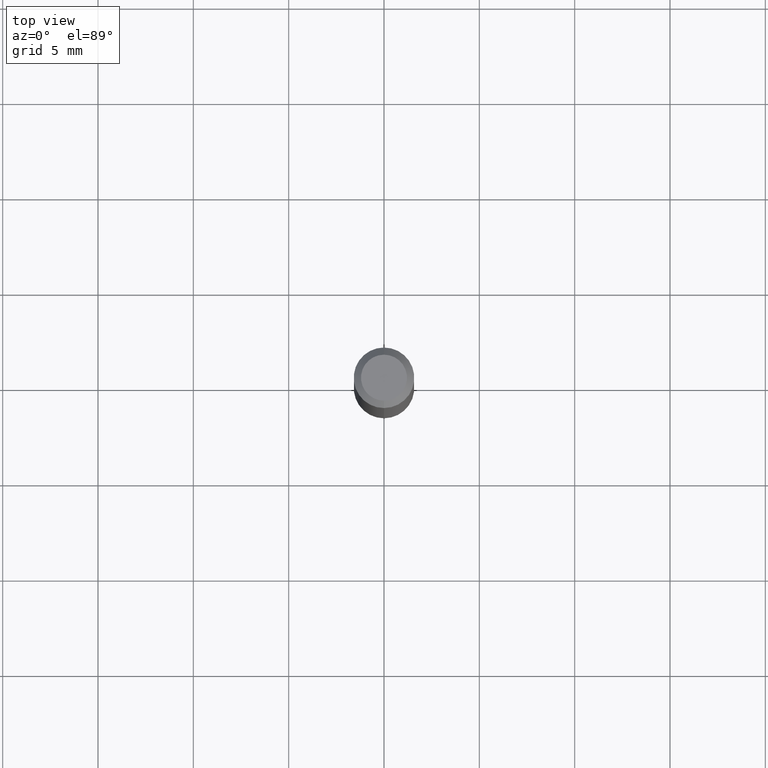
[diagram: clean part render]
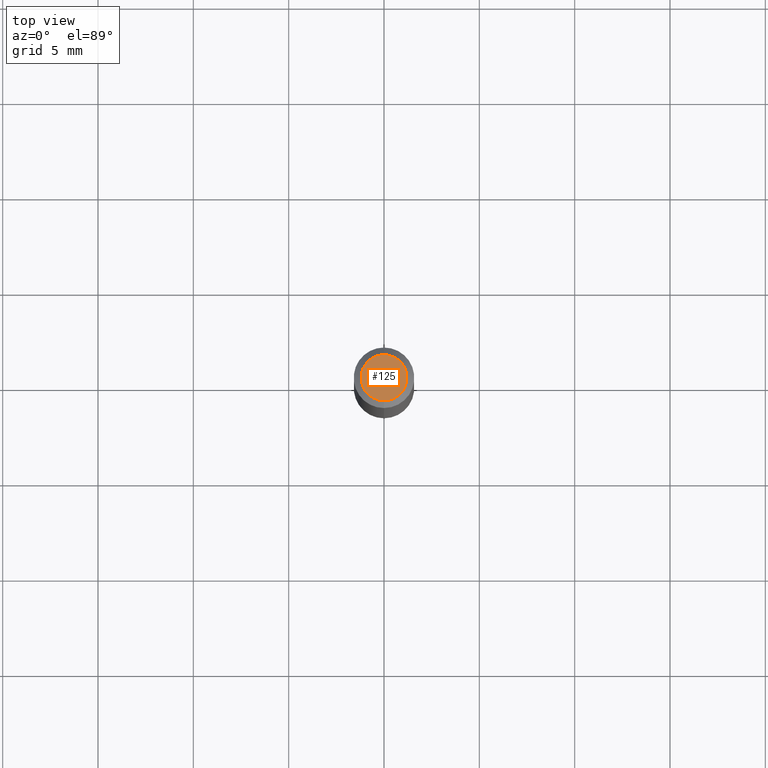
[diagram: same view with one face highlighted and labeled with its STEP entity id]
A machine part, top view. The second image highlights one B-rep face of the part: STEP entity #125.
In plain terms, the highlighted planar face has unit normal (0, -0, -1).
Its self-contained STEP definition (entity closure, byte-faithful):
#10 = DIRECTION ( 'NONE',  ( -6.982962677686266711E-15, -1.000000000000000000, 3.491472814868969217E-15 ) ) ;
#116 = CARTESIAN_POINT ( 'NONE',  ( 3.316907271900976096E-16, 0.04749999999999999362, -1.702753209465782678E-16 ) ) ;
#125 = ADVANCED_FACE ( 'NONE', ( #313 ), #239, .F. ) ;
#150 = CARTESIAN_POINT ( 'NONE',  ( 3.840629472727447874E-16, 0.04749999999999999362, -1.747056831868805136E-16 ) ) ;
#170 = DIRECTION ( 'NONE',  ( -2.445474758444490748E-29, 3.491472814868968822E-15, 1.000000000000000000 ) ) ;
#178 = CIRCLE ( 'NONE', #355, 0.04749999999999999362 ) ;
#185 = CARTESIAN_POINT ( 'NONE',  ( -3.773273898774340269E-16, -0.04749999999999999362, 1.569842342256715058E-16 ) ) ;
#199 = EDGE_CURVE ( 'NONE', #349, #510, #311, .T. ) ;
#228 = EDGE_CURVE ( 'NONE', #510, #349, #178, .T. ) ;
#231 = DIRECTION ( 'NONE',  ( 2.445474758444490468E-29, -3.491472814868968822E-15, -1.000000000000000000 ) ) ;
#234 = DIRECTION ( 'NONE',  ( 6.982962677686265922E-15, 1.000000000000000000, -3.491472814868968822E-15 ) ) ;
#239 = PLANE ( 'NONE',  #265 ) ;
#265 = AXIS2_PLACEMENT_3D ( 'NONE', #116, #231, #234 ) ;
#311 = CIRCLE ( 'NONE', #416, 0.04749999999999999362 ) ;
#313 = FACE_OUTER_BOUND ( 'NONE', #325, .T. ) ;
#325 = EDGE_LOOP ( 'NONE', ( #502, #464 ) ) ;
#335 = DIRECTION ( 'NONE',  ( -2.445474758444490748E-29, 3.491472814868968822E-15, 1.000000000000000000 ) ) ;
#349 = VERTEX_POINT ( 'NONE', #150 ) ;
#355 = AXIS2_PLACEMENT_3D ( 'NONE', #414, #170, #10 ) ;
#390 = CARTESIAN_POINT ( 'NONE',  ( 2.166867805884945142E-46, -3.093697864407453653E-32, -8.860724480604490072E-18 ) ) ;
#414 = CARTESIAN_POINT ( 'NONE',  ( 2.166867805884945142E-46, -3.093697864407453653E-32, -8.860724480604490072E-18 ) ) ;
#416 = AXIS2_PLACEMENT_3D ( 'NONE', #390, #335, #490 ) ;
#464 = ORIENTED_EDGE ( 'NONE', *, *, #228, .T. ) ;
#490 = DIRECTION ( 'NONE',  ( -6.982962677686266711E-15, -1.000000000000000000, 3.491472814868969217E-15 ) ) ;
#502 = ORIENTED_EDGE ( 'NONE', *, *, #199, .T. ) ;
#510 = VERTEX_POINT ( 'NONE', #185 ) ;